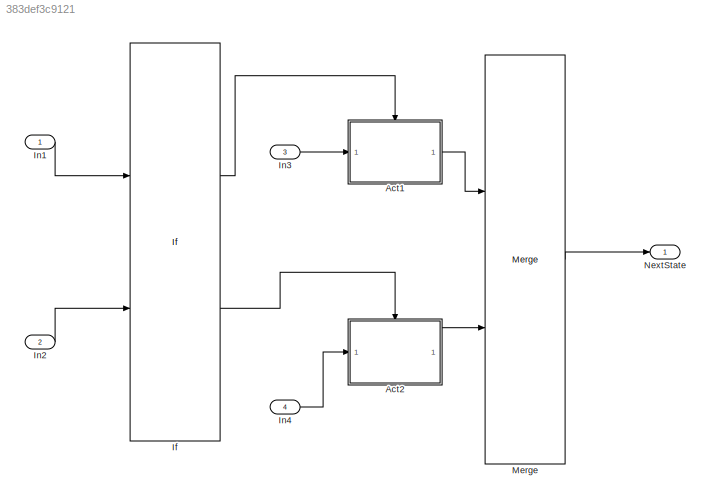
MODEL slx_383def3c9121
KIND model
CONFIG AbsTol = auto
CONFIG EnableMultiTasking = on
CONFIG FixedStep = 0.1
CONFIG MaxStep = auto
CONFIG MinStep = auto
CONFIG RelTol = 1e-3
CONFIG SampleTimeConstraint = Unconstrained
CONFIG Solver = FixedStepAuto
CONFIG SolverName = FixedStepAuto
CONFIG StartTime = 0.0
CONFIG StopTime = 10.0
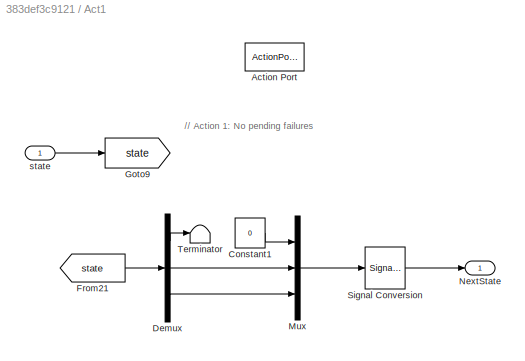
BLOCK [SubSystem] Act1
  Ports = [1, 1, 0, 0, 0, 0, 0, 1]
  RequestExecContextInheritance = off
  Variant = off
BLOCK [ActionPort] Act1/Action Port
  ActionType = then
BLOCK [Constant] Act1/Constant1
  OutDataTypeStr = int16
  Value = 0
BLOCK [Demux] Act1/Demux
  DisplayOption = bar
  Outputs = 3
  Ports = [1, 3]
BLOCK [From] Act1/From21
  GotoTag = state
BLOCK [Goto] Act1/Goto9
  GotoTag = state
BLOCK [Mux] Act1/Mux
  DisplayOption = bar
  Inputs = 3
  Ports = [3, 1]
BLOCK [Outport] Act1/NextState
  IconDisplay = Port number
BLOCK [SignalConversion] Act1/Signal Conversion
  OverrideOpt = off
BLOCK [Terminator] Act1/Terminator
BLOCK [Inport] Act1/state
  IconDisplay = Port number
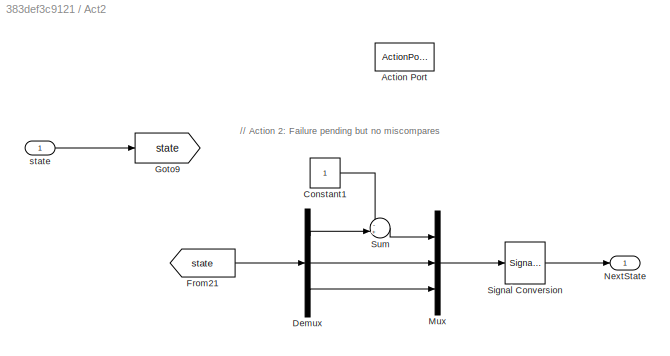
BLOCK [SubSystem] Act2
  Ports = [1, 1, 0, 0, 0, 0, 0, 1]
  RequestExecContextInheritance = off
  Variant = off
BLOCK [ActionPort] Act2/Action Port
  ActionType = elseif
BLOCK [Constant] Act2/Constant1
  OutDataTypeStr = int16
BLOCK [Demux] Act2/Demux
  DisplayOption = bar
  Outputs = 3
  Ports = [1, 3]
BLOCK [From] Act2/From21
  GotoTag = state
BLOCK [Goto] Act2/Goto9
  GotoTag = state
BLOCK [Mux] Act2/Mux
  DisplayOption = bar
  Inputs = 3
  Ports = [3, 1]
BLOCK [Outport] Act2/NextState
  IconDisplay = Port number
BLOCK [SignalConversion] Act2/Signal Conversion
  OverrideOpt = off
BLOCK [Sum] Act2/Sum
  IconShape = round
  InputSameDT = off
  Inputs = -+|
  OutDataTypeStr = Inherit: Inherit via internal rule
  Ports = [2, 1]
  SaturateOnIntegerOverflow = off
BLOCK [Inport] Act2/state
  IconDisplay = Port number
BLOCK [If] If
  ElseIfExpressions = u2
  IfExpression = u1
  NumInputs = 2
  Ports = [2, 2]
  ShowElse = off
BLOCK [Inport] In1
  IconDisplay = Port number
  OutDataTypeStr = boolean
BLOCK [Inport] In2
  IconDisplay = Port number
  OutDataTypeStr = boolean
  Port = 2
BLOCK [Inport] In3
  IconDisplay = Port number
  OutDataTypeStr = int16
  Port = 3
BLOCK [Inport] In4
  IconDisplay = Port number
  OutDataTypeStr = int16
  Port = 4
BLOCK [Merge] Merge
  Ports = [2, 1]
BLOCK [Outport] NextState
  IconDisplay = Port number
ANNOTATION Act1: // Action 1: No pending failures
ANNOTATION Act2: // Action 2: Failure pending but no miscompares
LINE Act1/Constant1:1 -> Act1/Mux:1
LINE Act1/Demux:1 -> Act1/Terminator:1
LINE Act1/Demux:2 -> Act1/Mux:2
LINE Act1/Demux:3 -> Act1/Mux:3
LINE Act1/From21:1 -> Act1/Demux:1
LINE Act1/Mux:1 -> Act1/Signal Conversion:1
LINE Act1/Signal Conversion:1 -> Act1/NextState:1
LINE Act1/state:1 -> Act1/Goto9:1
LINE Act1:1 -> Merge:1
LINE Act2/Constant1:1 -> Act2/Sum:1
LINE Act2/Demux:1 -> Act2/Sum:2
LINE Act2/Demux:2 -> Act2/Mux:2
LINE Act2/Demux:3 -> Act2/Mux:3
LINE Act2/From21:1 -> Act2/Demux:1
LINE Act2/Mux:1 -> Act2/Signal Conversion:1
LINE Act2/Signal Conversion:1 -> Act2/NextState:1
LINE Act2/Sum:1 -> Act2/Mux:1
LINE Act2/state:1 -> Act2/Goto9:1
LINE Act2:1 -> Merge:2
LINE If:1 -> Act1:ifaction
LINE If:2 -> Act2:ifaction
LINE In1:1 -> If:1
LINE In2:1 -> If:2
LINE In3:1 -> Act1:1
LINE In4:1 -> Act2:1
LINE Merge:1 -> NextState:1
